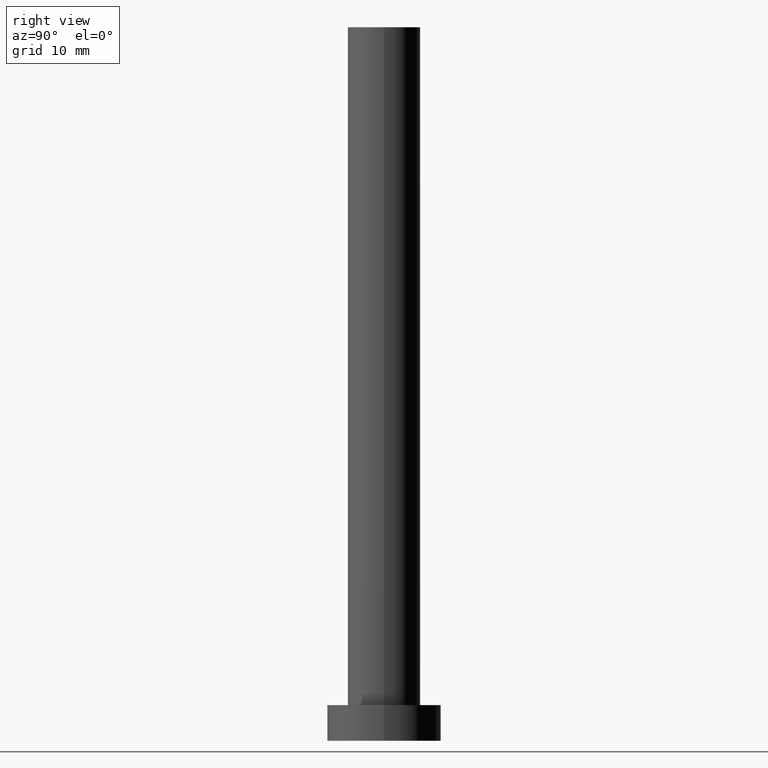
[diagram: clean part render]
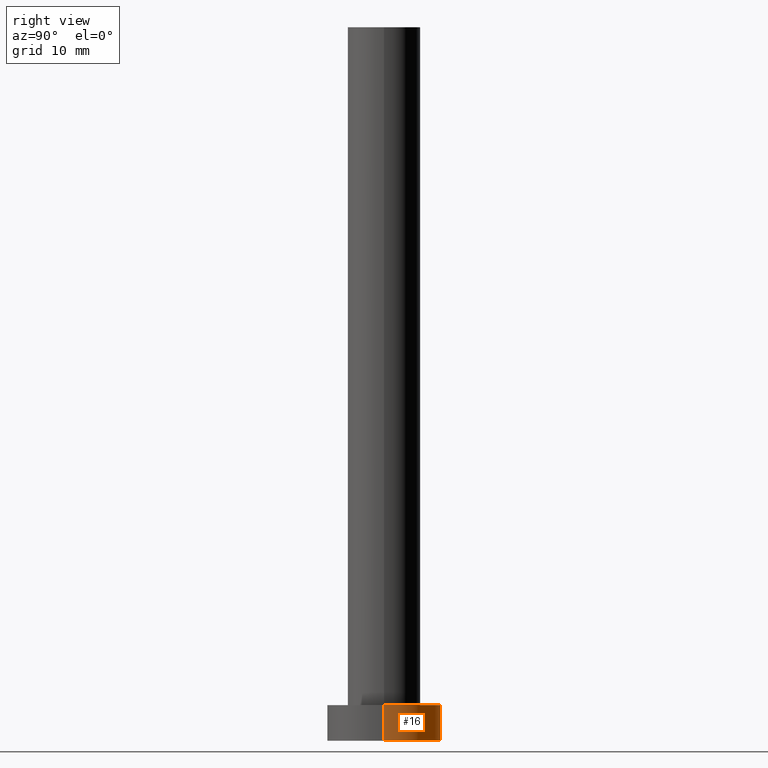
[diagram: same view with one face highlighted and labeled with its STEP entity id]
A machine part, right view. The second image highlights one B-rep face of the part: STEP entity #16.
In plain terms, the highlighted cylindrical surface (partial cylindrical patch) has radius 8 mm, axis along (-0, -0, -1).
Its self-contained STEP definition (entity closure, byte-faithful):
#12 = DIRECTION ( 'NONE',  ( -1.000000000000000000, 0.000000000000000000, 0.000000000000000000 ) ) ;
#13 = AXIS2_PLACEMENT_3D ( 'NONE', #20, #198, #239 ) ;
#15 = DIRECTION ( 'NONE',  ( -0.000000000000000000, -0.000000000000000000, -1.000000000000000000 ) ) ;
#16 = ADVANCED_FACE ( 'NONE', ( #192 ), #173, .T. ) ;
#20 = CARTESIAN_POINT ( 'NONE',  ( 0.000000000000000000, 0.000000000000000000, 5.000000000000000000 ) ) ;
#21 = VECTOR ( 'NONE', #15, 1000.000000000000000 ) ;
#31 = VERTEX_POINT ( 'NONE', #193 ) ;
#40 = CARTESIAN_POINT ( 'NONE',  ( 8.000000000000000000, 9.797174393178825657E-16, 5.000000000000000000 ) ) ;
#51 = AXIS2_PLACEMENT_3D ( 'NONE', #134, #117, #12 ) ;
#60 = EDGE_CURVE ( 'NONE', #243, #31, #156, .T. ) ;
#63 = VERTEX_POINT ( 'NONE', #99 ) ;
#85 = DIRECTION ( 'NONE',  ( -0.000000000000000000, -0.000000000000000000, -1.000000000000000000 ) ) ;
#91 = CIRCLE ( 'NONE', #132, 8.000000000000000000 ) ;
#93 = ORIENTED_EDGE ( 'NONE', *, *, #201, .T. ) ;
#99 = CARTESIAN_POINT ( 'NONE',  ( 8.000000000000000000, 9.797174393178825657E-16, 0.000000000000000000 ) ) ;
#108 = EDGE_CURVE ( 'NONE', #189, #63, #253, .T. ) ;
#110 = ORIENTED_EDGE ( 'NONE', *, *, #60, .F. ) ;
#116 = ORIENTED_EDGE ( 'NONE', *, *, #214, .F. ) ;
#117 = DIRECTION ( 'NONE',  ( -0.000000000000000000, -0.000000000000000000, -1.000000000000000000 ) ) ;
#132 = AXIS2_PLACEMENT_3D ( 'NONE', #182, #140, #196 ) ;
#133 = EDGE_LOOP ( 'NONE', ( #116, #227, #93, #110 ) ) ;
#134 = CARTESIAN_POINT ( 'NONE',  ( 0.000000000000000000, 0.000000000000000000, 5.000000000000000000 ) ) ;
#140 = DIRECTION ( 'NONE',  ( 0.000000000000000000, 0.000000000000000000, 1.000000000000000000 ) ) ;
#156 = LINE ( 'NONE', #172, #21 ) ;
#172 = CARTESIAN_POINT ( 'NONE',  ( -8.000000000000000000, 0.000000000000000000, 5.000000000000000000 ) ) ;
#173 = CYLINDRICAL_SURFACE ( 'NONE', #51, 8.000000000000000000 ) ;
#182 = CARTESIAN_POINT ( 'NONE',  ( 0.000000000000000000, 0.000000000000000000, 0.000000000000000000 ) ) ;
#189 = VERTEX_POINT ( 'NONE', #40 ) ;
#192 = FACE_OUTER_BOUND ( 'NONE', #133, .T. ) ;
#193 = CARTESIAN_POINT ( 'NONE',  ( -8.000000000000000000, 0.000000000000000000, 0.000000000000000000 ) ) ;
#195 = CARTESIAN_POINT ( 'NONE',  ( 8.000000000000000000, 9.797174393178825657E-16, 5.000000000000000000 ) ) ;
#196 = DIRECTION ( 'NONE',  ( 1.000000000000000000, 0.000000000000000000, 0.000000000000000000 ) ) ;
#198 = DIRECTION ( 'NONE',  ( 0.000000000000000000, 0.000000000000000000, 1.000000000000000000 ) ) ;
#201 = EDGE_CURVE ( 'NONE', #63, #31, #91, .T. ) ;
#212 = CIRCLE ( 'NONE', #13, 8.000000000000000000 ) ;
#214 = EDGE_CURVE ( 'NONE', #189, #243, #212, .T. ) ;
#227 = ORIENTED_EDGE ( 'NONE', *, *, #108, .T. ) ;
#229 = VECTOR ( 'NONE', #85, 1000.000000000000000 ) ;
#239 = DIRECTION ( 'NONE',  ( 1.000000000000000000, 0.000000000000000000, 0.000000000000000000 ) ) ;
#243 = VERTEX_POINT ( 'NONE', #251 ) ;
#251 = CARTESIAN_POINT ( 'NONE',  ( -8.000000000000000000, 0.000000000000000000, 5.000000000000000000 ) ) ;
#253 = LINE ( 'NONE', #195, #229 ) ;